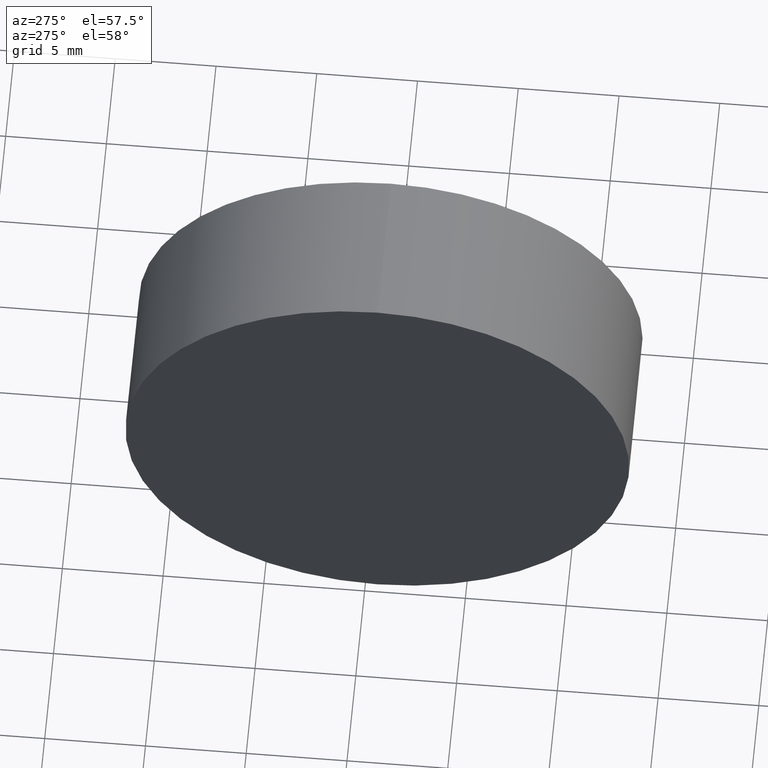
[diagram: clean part render]
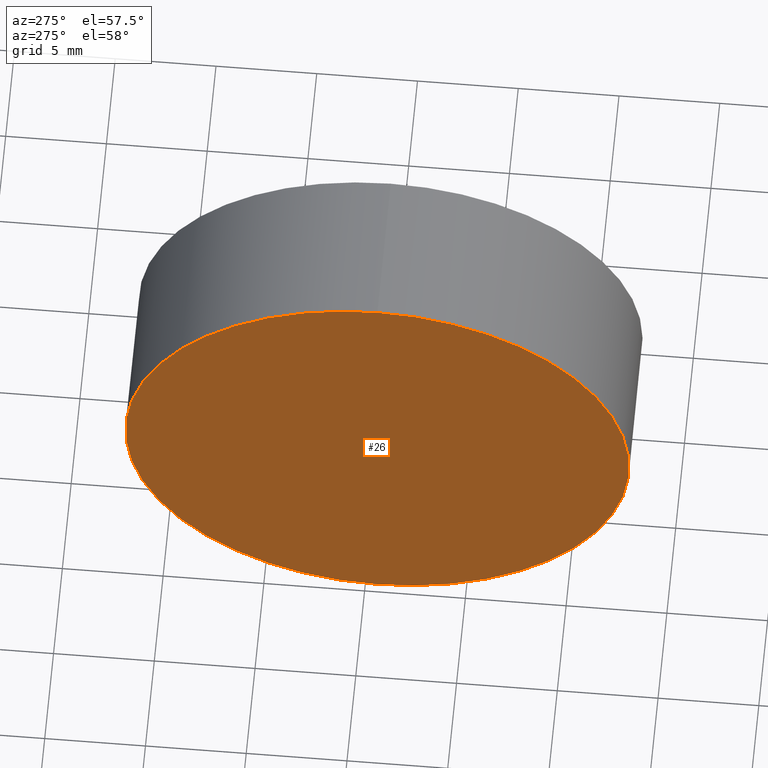
[diagram: same view with one face highlighted and labeled with its STEP entity id]
A machine part, auxiliary view. The second image highlights one B-rep face of the part: STEP entity #26.
In plain terms, the highlighted planar face has unit normal (1, 0, 0).
Its self-contained STEP definition (entity closure, byte-faithful):
#11 = DIRECTION ( 'NONE',  ( 0.0000000000000000000, 0.0000000000000000000, -1.000000000000000000 ) ) ;
#14 = DIRECTION ( 'NONE',  ( 0.0000000000000000000, 0.0000000000000000000, 1.000000000000000000 ) ) ;
#15 = CARTESIAN_POINT ( 'NONE',  ( 115.0926555349195200, 69.37802112337243400, 0.0000000000000000000 ) ) ;
#18 = VERTEX_POINT ( 'NONE', #107 ) ;
#26 = ADVANCED_FACE ( 'NONE', ( #178 ), #33, .F. ) ;
#30 = CARTESIAN_POINT ( 'NONE',  ( 115.0926555349195200, 69.37802112337243400, 0.0000000000000000000 ) ) ;
#33 = PLANE ( 'NONE',  #126 ) ;
#58 = CIRCLE ( 'NONE', #74, 12.49999999999999600 ) ;
#64 = DIRECTION ( 'NONE',  ( 0.0000000000000000000, 0.0000000000000000000, 1.000000000000000000 ) ) ;
#68 = EDGE_CURVE ( 'NONE', #132, #18, #180, .T. ) ;
#70 = EDGE_LOOP ( 'NONE', ( #150, #94 ) ) ;
#74 = AXIS2_PLACEMENT_3D ( 'NONE', #15, #102, #64 ) ;
#79 = DIRECTION ( 'NONE',  ( 1.000000000000000000, 0.0000000000000000000, 0.0000000000000000000 ) ) ;
#94 = ORIENTED_EDGE ( 'NONE', *, *, #68, .T. ) ;
#98 = AXIS2_PLACEMENT_3D ( 'NONE', #119, #130, #14 ) ;
#102 = DIRECTION ( 'NONE',  ( -1.000000000000000000, -0.0000000000000000000, -0.0000000000000000000 ) ) ;
#107 = CARTESIAN_POINT ( 'NONE',  ( 115.0926555349195200, 69.37802112337243400, 12.49999999999999600 ) ) ;
#119 = CARTESIAN_POINT ( 'NONE',  ( 115.0926555349195200, 69.37802112337243400, 0.0000000000000000000 ) ) ;
#126 = AXIS2_PLACEMENT_3D ( 'NONE', #30, #79, #11 ) ;
#127 = EDGE_CURVE ( 'NONE', #18, #132, #58, .T. ) ;
#130 = DIRECTION ( 'NONE',  ( -1.000000000000000000, -0.0000000000000000000, -0.0000000000000000000 ) ) ;
#132 = VERTEX_POINT ( 'NONE', #161 ) ;
#150 = ORIENTED_EDGE ( 'NONE', *, *, #127, .T. ) ;
#161 = CARTESIAN_POINT ( 'NONE',  ( 115.0926555349195200, 69.37802112337243400, -12.49999999999999600 ) ) ;
#178 = FACE_OUTER_BOUND ( 'NONE', #70, .T. ) ;
#180 = CIRCLE ( 'NONE', #98, 12.49999999999999600 ) ;